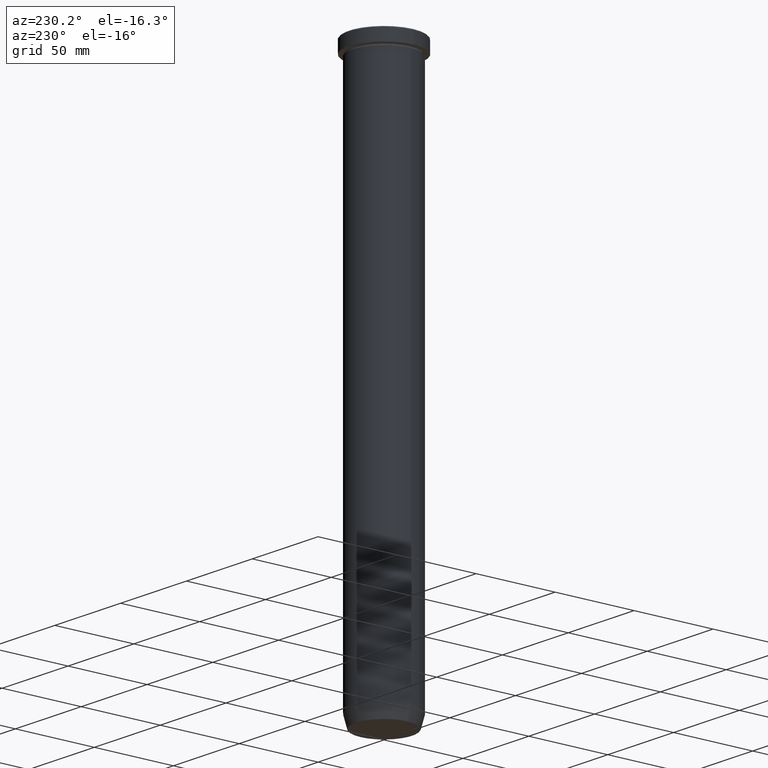
[diagram: clean part render]
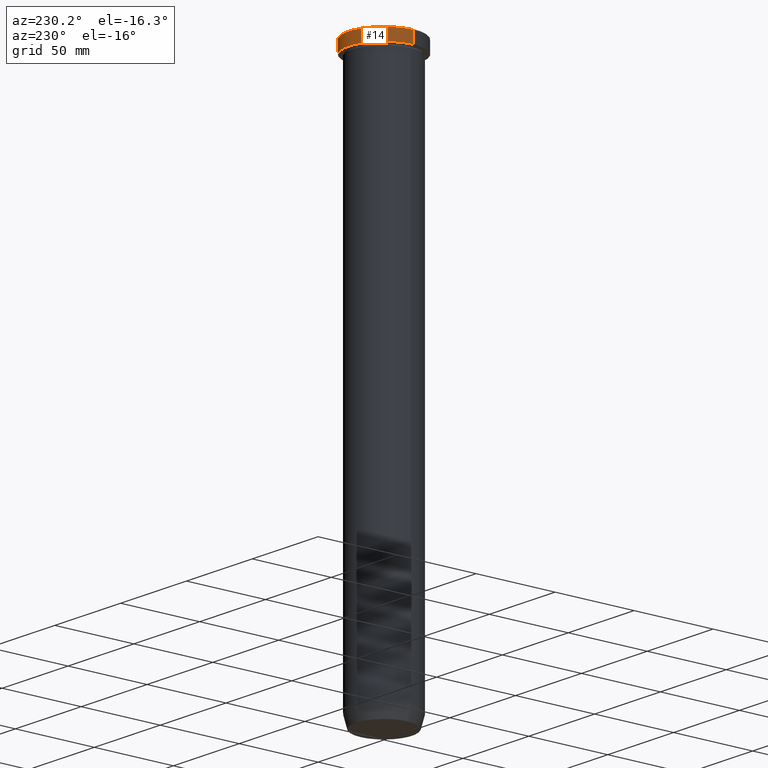
[diagram: same view with one face highlighted and labeled with its STEP entity id]
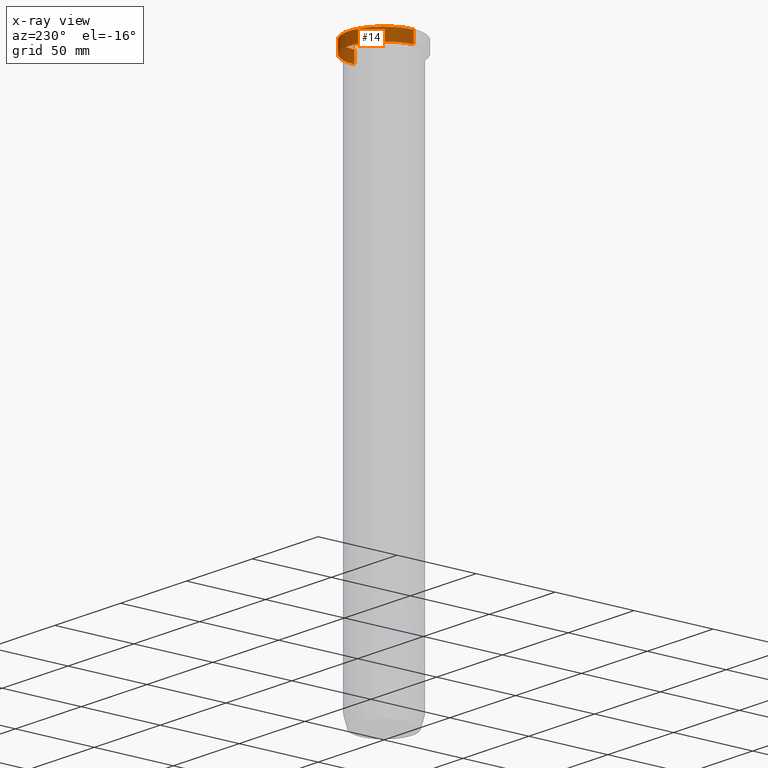
[diagram: x-ray of the same camera — body ghosted, the highlighted face saturated]
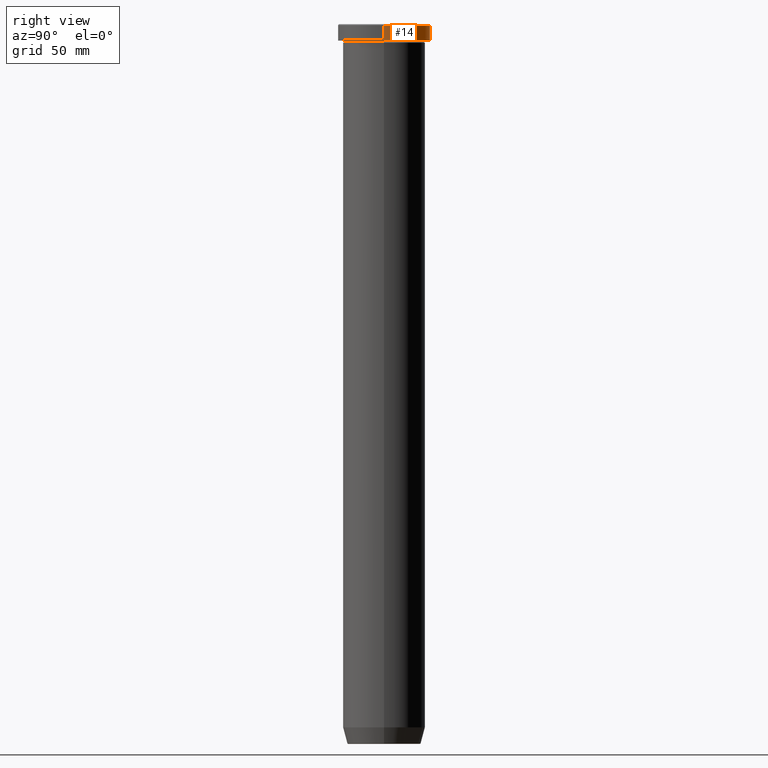
[diagram: same view with one face highlighted and labeled with its STEP entity id]
A machine part, auxiliary view. The second image highlights one B-rep face of the part: STEP entity #14.
The next image is the same camera in x-ray: the body ghosted, the highlighted face saturated — about 0% of this face is hidden behind the body in this view.
A second angle (right view) of the same face is appended — the face is thin or edge-on in the first view.
In plain terms, the highlighted cylindrical surface (partial cylindrical patch) has radius 22.5 mm, axis along (-0, -0, 1).
Its self-contained STEP definition (entity closure, byte-faithful):
#14 = ADVANCED_FACE ( 'NONE', ( #391 ), #388, .T. ) ;
#33 = AXIS2_PLACEMENT_3D ( 'NONE', #59, #132, #240 ) ;
#34 = ORIENTED_EDGE ( 'NONE', *, *, #274, .F. ) ;
#42 = ORIENTED_EDGE ( 'NONE', *, *, #587, .T. ) ;
#59 = CARTESIAN_POINT ( 'NONE',  ( 0.000000000000000000, 0.000000000000000000, -7.999999999999998224 ) ) ;
#63 = VERTEX_POINT ( 'NONE', #281 ) ;
#68 = EDGE_CURVE ( 'NONE', #151, #63, #553, .T. ) ;
#69 = ORIENTED_EDGE ( 'NONE', *, *, #359, .T. ) ;
#73 = VERTEX_POINT ( 'NONE', #335 ) ;
#97 = CARTESIAN_POINT ( 'NONE',  ( 22.50000000000000000, 0.000000000000000000, -7.999999999999998224 ) ) ;
#102 = DIRECTION ( 'NONE',  ( -0.000000000000000000, -0.000000000000000000, 1.000000000000000000 ) ) ;
#132 = DIRECTION ( 'NONE',  ( -0.000000000000000000, -0.000000000000000000, 1.000000000000000000 ) ) ;
#151 = VERTEX_POINT ( 'NONE', #97 ) ;
#193 = EDGE_LOOP ( 'NONE', ( #559, #69, #42, #34 ) ) ;
#216 = AXIS2_PLACEMENT_3D ( 'NONE', #577, #396, #540 ) ;
#240 = DIRECTION ( 'NONE',  ( 1.000000000000000000, 0.000000000000000000, 0.000000000000000000 ) ) ;
#256 = CARTESIAN_POINT ( 'NONE',  ( 22.50000000000000000, 0.000000000000000000, 0.000000000000000000 ) ) ;
#258 = LINE ( 'NONE', #256, #519 ) ;
#261 = DIRECTION ( 'NONE',  ( -0.000000000000000000, -0.000000000000000000, 1.000000000000000000 ) ) ;
#266 = CARTESIAN_POINT ( 'NONE',  ( -22.50000000000000000, 2.755455298081544778E-15, 0.000000000000000000 ) ) ;
#274 = EDGE_CURVE ( 'NONE', #151, #73, #258, .T. ) ;
#281 = CARTESIAN_POINT ( 'NONE',  ( -22.50000000000000000, 2.755455298081544778E-15, -7.999999999999998224 ) ) ;
#297 = VECTOR ( 'NONE', #261, 1000.000000000000000 ) ;
#335 = CARTESIAN_POINT ( 'NONE',  ( 22.50000000000000000, 0.000000000000000000, -0.5000000000000213163 ) ) ;
#359 = EDGE_CURVE ( 'NONE', #63, #362, #405, .T. ) ;
#362 = VERTEX_POINT ( 'NONE', #531 ) ;
#368 = AXIS2_PLACEMENT_3D ( 'NONE', #373, #551, #498 ) ;
#373 = CARTESIAN_POINT ( 'NONE',  ( 0.000000000000000000, 0.000000000000000000, -0.5000000000000213163 ) ) ;
#379 = CIRCLE ( 'NONE', #368, 22.50000000000000000 ) ;
#388 = CYLINDRICAL_SURFACE ( 'NONE', #216, 22.50000000000000000 ) ;
#391 = FACE_OUTER_BOUND ( 'NONE', #193, .T. ) ;
#396 = DIRECTION ( 'NONE',  ( -0.000000000000000000, -0.000000000000000000, 1.000000000000000000 ) ) ;
#405 = LINE ( 'NONE', #266, #297 ) ;
#498 = DIRECTION ( 'NONE',  ( 1.000000000000000000, 0.000000000000000000, 0.000000000000000000 ) ) ;
#519 = VECTOR ( 'NONE', #102, 1000.000000000000000 ) ;
#531 = CARTESIAN_POINT ( 'NONE',  ( -22.50000000000000000, 2.755455298081544778E-15, -0.5000000000000213163 ) ) ;
#540 = DIRECTION ( 'NONE',  ( 1.000000000000000000, 0.000000000000000000, 0.000000000000000000 ) ) ;
#551 = DIRECTION ( 'NONE',  ( 0.000000000000000000, 0.000000000000000000, -1.000000000000000000 ) ) ;
#553 = CIRCLE ( 'NONE', #33, 22.50000000000000000 ) ;
#559 = ORIENTED_EDGE ( 'NONE', *, *, #68, .T. ) ;
#577 = CARTESIAN_POINT ( 'NONE',  ( 0.000000000000000000, 0.000000000000000000, 0.000000000000000000 ) ) ;
#587 = EDGE_CURVE ( 'NONE', #362, #73, #379, .T. ) ;